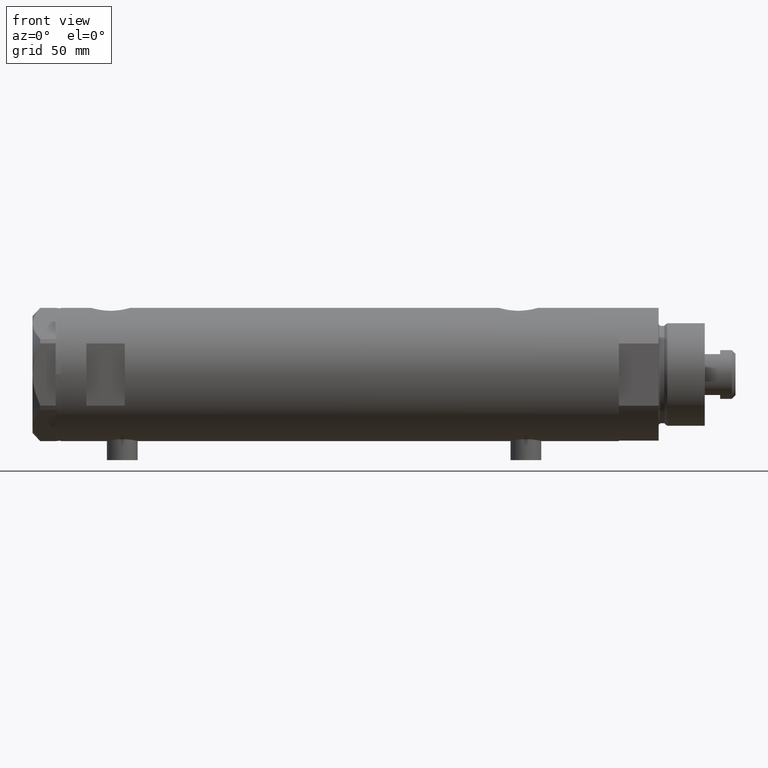
[diagram: clean part render]
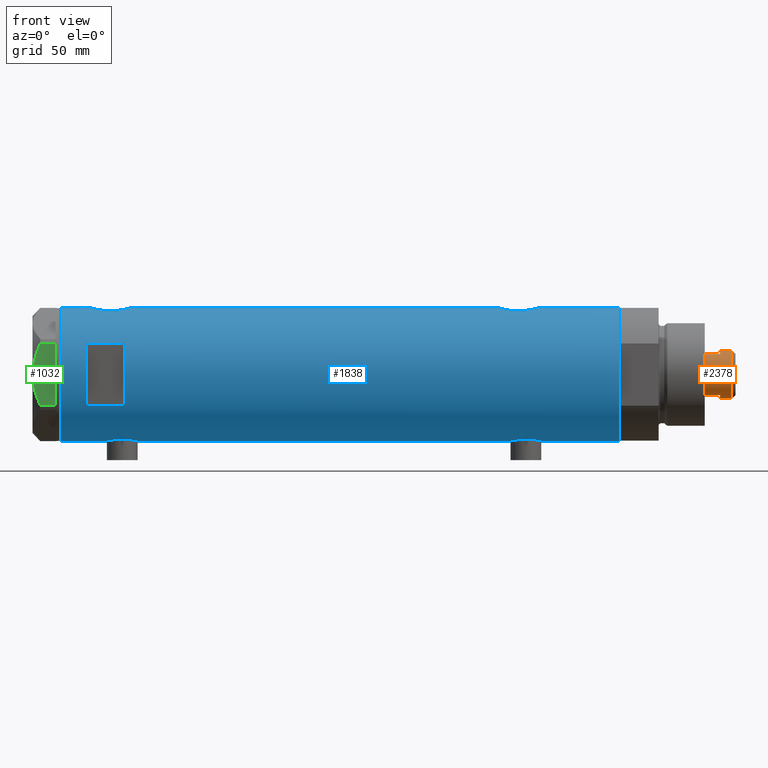
[diagram: same view with three faces highlighted in distinct colors, each labeled with its STEP entity id]
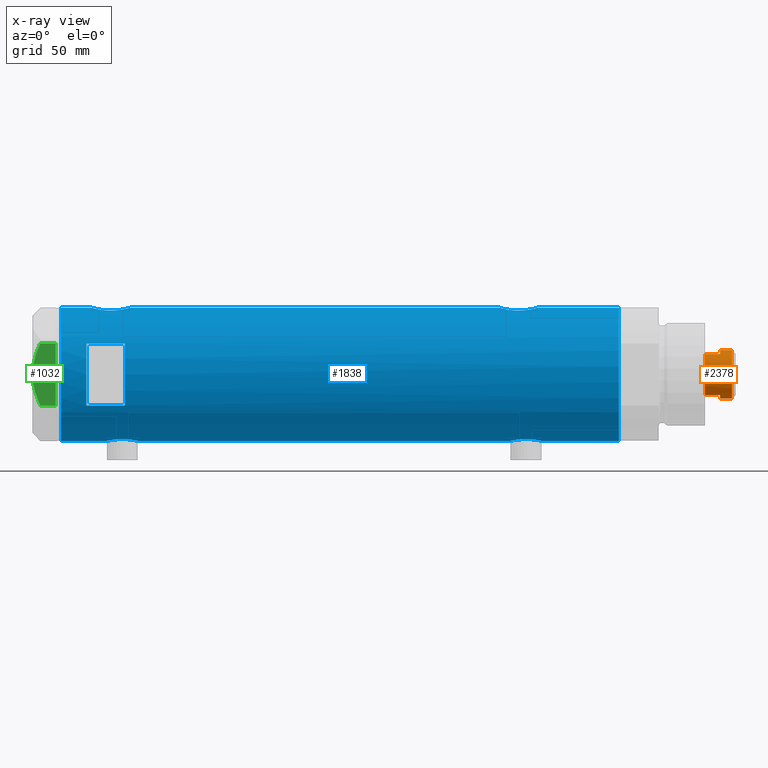
[diagram: x-ray of the same camera — body ghosted, the three highlighted faces saturated]
A machine part, front view with three faces highlighted in distinct colors.
The next image is the same camera in x-ray (body ghosted, the three faces saturated) — at least one of them is partly hidden behind the body in this view.
Their STEP definitions:

[orange] entity #2378 — the highlighted cylindrical surface (edge-blend (fillet) strip) has radius 9.5 mm, axis along (-1, -0, 0).
#20 = LINE ( 'NONE', #3564, #4116 ) ;
#209 = ORIENTED_EDGE ( 'NONE', *, *, #828, .T. ) ;
#306 = ORIENTED_EDGE ( 'NONE', *, *, #3644, .T. ) ;
#376 = CARTESIAN_POINT ( 'NONE',  ( 0.000000000000000000, 0.000000000000000000, 233.6000000000000227 ) ) ;
#552 = EDGE_CURVE ( 'NONE', #2741, #1114, #2913, .T. ) ;
#790 = DIRECTION ( 'NONE',  ( -1.000000000000000000, 0.000000000000000000, 0.000000000000000000 ) ) ;
#807 = ORIENTED_EDGE ( 'NONE', *, *, #4837, .F. ) ;
#828 = EDGE_CURVE ( 'NONE', #979, #5052, #4329, .T. ) ;
#886 = CARTESIAN_POINT ( 'NONE',  ( -9.500000000000000000, 0.000000000000000000, 233.6000000000000227 ) ) ;
#979 = VERTEX_POINT ( 'NONE', #1139 ) ;
#1017 = AXIS2_PLACEMENT_3D ( 'NONE', #4814, #1938, #4790 ) ;
#1114 = VERTEX_POINT ( 'NONE', #4857 ) ;
#1137 = LINE ( 'NONE', #2679, #4444 ) ;
#1139 = CARTESIAN_POINT ( 'NONE',  ( -9.500000000000001776, 0.000000000000000000, 238.1999999999999886 ) ) ;
#1163 = CARTESIAN_POINT ( 'NONE',  ( 0.000000000000000000, 0.000000000000000000, 227.6000000000000227 ) ) ;
#1192 = CARTESIAN_POINT ( 'NONE',  ( -7.982950582334825462, -5.150000000000003020, 233.6000000000000227 ) ) ;
#1272 = VERTEX_POINT ( 'NONE', #4668 ) ;
#1339 = AXIS2_PLACEMENT_3D ( 'NONE', #3613, #2428, #790 ) ;
#1584 = DIRECTION ( 'NONE',  ( 0.000000000000000000, 0.000000000000000000, 1.000000000000000000 ) ) ;
#1629 = FACE_OUTER_BOUND ( 'NONE', #2999, .T. ) ;
#1769 = CARTESIAN_POINT ( 'NONE',  ( 9.500000000000001776, 1.163414459189985682E-15, 233.6000000000000227 ) ) ;
#1921 = DIRECTION ( 'NONE',  ( -0.000000000000000000, -0.000000000000000000, -1.000000000000000000 ) ) ;
#1938 = DIRECTION ( 'NONE',  ( 0.000000000000000000, 0.000000000000000000, -1.000000000000000000 ) ) ;
#1940 = EDGE_CURVE ( 'NONE', #3466, #1114, #3273, .T. ) ;
#2015 = AXIS2_PLACEMENT_3D ( 'NONE', #3272, #4878, #2880 ) ;
#2024 = AXIS2_PLACEMENT_3D ( 'NONE', #376, #1584, #3173 ) ;
#2122 = CARTESIAN_POINT ( 'NONE',  ( -7.982950582334825462, -5.150000000000019007, 227.6000000000000227 ) ) ;
#2132 = CARTESIAN_POINT ( 'NONE',  ( 7.982950582334832568, -5.149999999999997691, 233.6000000000000227 ) ) ;
#2278 = CIRCLE ( 'NONE', #2015, 9.500000000000000000 ) ;
#2378 = ADVANCED_FACE ( 'NONE', ( #1629 ), #2457, .T. ) ;
#2428 = DIRECTION ( 'NONE',  ( -0.000000000000000000, -0.000000000000000000, -1.000000000000000000 ) ) ;
#2457 = CYLINDRICAL_SURFACE ( 'NONE', #1339, 9.500000000000001776 ) ;
#2476 = EDGE_CURVE ( 'NONE', #5052, #2981, #2278, .T. ) ;
#2525 = CIRCLE ( 'NONE', #1017, 9.500000000000001776 ) ;
#2679 = CARTESIAN_POINT ( 'NONE',  ( -7.982950582334829015, -5.150000000000001243, 233.6000000000000227 ) ) ;
#2725 = VERTEX_POINT ( 'NONE', #2122 ) ;
#2741 = VERTEX_POINT ( 'NONE', #3294 ) ;
#2880 = DIRECTION ( 'NONE',  ( 1.000000000000000000, 0.000000000000000000, 0.000000000000000000 ) ) ;
#2913 = LINE ( 'NONE', #1769, #3259 ) ;
#2944 = EDGE_CURVE ( 'NONE', #2725, #1272, #4532, .T. ) ;
#2981 = VERTEX_POINT ( 'NONE', #1192 ) ;
#2999 = EDGE_LOOP ( 'NONE', ( #4180, #5167, #209, #3744, #306, #4023, #807, #4245 ) ) ;
#3092 = CARTESIAN_POINT ( 'NONE',  ( -9.500000000000001776, 0.000000000000000000, 233.6000000000000227 ) ) ;
#3173 = DIRECTION ( 'NONE',  ( 1.000000000000000000, 0.000000000000000000, 0.000000000000000000 ) ) ;
#3234 = DIRECTION ( 'NONE',  ( 0.000000000000000000, 0.000000000000000000, 1.000000000000000000 ) ) ;
#3259 = VECTOR ( 'NONE', #3726, 1000.000000000000000 ) ;
#3272 = CARTESIAN_POINT ( 'NONE',  ( 0.000000000000000000, 0.000000000000000000, 233.6000000000000227 ) ) ;
#3273 = CIRCLE ( 'NONE', #2024, 9.500000000000000000 ) ;
#3294 = CARTESIAN_POINT ( 'NONE',  ( 9.500000000000001776, 1.163414459189985682E-15, 238.1999999999999886 ) ) ;
#3466 = VERTEX_POINT ( 'NONE', #2132 ) ;
#3520 = AXIS2_PLACEMENT_3D ( 'NONE', #1163, #3234, #4045 ) ;
#3564 = CARTESIAN_POINT ( 'NONE',  ( 7.982950582334832568, -5.149999999999997691, 233.6000000000000227 ) ) ;
#3613 = CARTESIAN_POINT ( 'NONE',  ( 0.000000000000000000, 0.000000000000000000, 233.6000000000000227 ) ) ;
#3644 = EDGE_CURVE ( 'NONE', #2981, #2725, #1137, .T. ) ;
#3726 = DIRECTION ( 'NONE',  ( -0.000000000000000000, -0.000000000000000000, -1.000000000000000000 ) ) ;
#3744 = ORIENTED_EDGE ( 'NONE', *, *, #2476, .T. ) ;
#4023 = ORIENTED_EDGE ( 'NONE', *, *, #2944, .T. ) ;
#4045 = DIRECTION ( 'NONE',  ( 1.000000000000000000, 0.000000000000000000, 0.000000000000000000 ) ) ;
#4116 = VECTOR ( 'NONE', #4348, 1000.000000000000000 ) ;
#4180 = ORIENTED_EDGE ( 'NONE', *, *, #552, .F. ) ;
#4245 = ORIENTED_EDGE ( 'NONE', *, *, #1940, .T. ) ;
#4329 = LINE ( 'NONE', #3092, #4352 ) ;
#4348 = DIRECTION ( 'NONE',  ( -0.000000000000000000, -0.000000000000000000, -1.000000000000000000 ) ) ;
#4352 = VECTOR ( 'NONE', #1921, 1000.000000000000000 ) ;
#4444 = VECTOR ( 'NONE', #4730, 1000.000000000000000 ) ;
#4467 = EDGE_CURVE ( 'NONE', #2741, #979, #2525, .T. ) ;
#4532 = CIRCLE ( 'NONE', #3520, 9.500000000000001776 ) ;
#4668 = CARTESIAN_POINT ( 'NONE',  ( 7.982950582334834344, -5.150000000000009237, 227.6000000000000227 ) ) ;
#4730 = DIRECTION ( 'NONE',  ( -0.000000000000000000, -0.000000000000000000, -1.000000000000000000 ) ) ;
#4790 = DIRECTION ( 'NONE',  ( 1.000000000000000000, 0.000000000000000000, 0.000000000000000000 ) ) ;
#4814 = CARTESIAN_POINT ( 'NONE',  ( 0.000000000000000000, 0.000000000000000000, 238.1999999999999886 ) ) ;
#4837 = EDGE_CURVE ( 'NONE', #3466, #1272, #20, .T. ) ;
#4857 = CARTESIAN_POINT ( 'NONE',  ( 9.500000000000000000, 1.163414459189985485E-15, 233.6000000000000227 ) ) ;
#4878 = DIRECTION ( 'NONE',  ( 0.000000000000000000, 0.000000000000000000, 1.000000000000000000 ) ) ;
#5052 = VERTEX_POINT ( 'NONE', #886 ) ;
#5167 = ORIENTED_EDGE ( 'NONE', *, *, #4467, .T. ) ;

[blue] entity #1838 — the highlighted cylindrical surface (partial cylindrical patch) has radius 26 mm, axis along (-1, -0, 0).
#23 = CARTESIAN_POINT ( 'NONE',  ( -26.00000000000000355, 3.184081677783118585E-15, -108.9500000000000028 ) ) ;
#45 = CARTESIAN_POINT ( 'NONE',  ( 26.00000000000000355, 0.000000000000000000, -108.9500000000000028 ) ) ;
#136 = CARTESIAN_POINT ( 'NONE',  ( 12.12435565298214080, -23.00000000000000355, 98.95000000000001705 ) ) ;
#156 = CYLINDRICAL_SURFACE ( 'NONE', #2351, 26.00000000000000355 ) ;
#234 = CARTESIAN_POINT ( 'NONE',  ( -25.42977453177915592, -5.420307583276858132, 81.81187728206637644 ) ) ;
#237 = CIRCLE ( 'NONE', #3174, 26.00000000000000355 ) ;
#269 = CARTESIAN_POINT ( 'NONE',  ( -25.24022290516698774, -6.239518219915429320, 84.53402784061569264 ) ) ;
#282 = EDGE_CURVE ( 'NONE', #949, #2224, #2692, .T. ) ;
#291 = ORIENTED_EDGE ( 'NONE', *, *, #282, .F. ) ;
#293 = CARTESIAN_POINT ( 'NONE',  ( -25.67063510297210271, -4.128418051804843003, -67.95317424728736455 ) ) ;
#312 = CARTESIAN_POINT ( 'NONE',  ( -26.00000000000000355, 1.227111019500118713E-15, 91.20000000000000284 ) ) ;
#313 = CARTESIAN_POINT ( 'NONE',  ( 25.52449676677458967, -4.953491517965892932, 83.81325508665925383 ) ) ;
#319 = CARTESIAN_POINT ( 'NONE',  ( -25.99999999999999645, -0.4086738135806038397, -78.90000000000000568 ) ) ;
#321 = CARTESIAN_POINT ( 'NONE',  ( -25.28632996747172967, -6.050474653715409268, 86.56911870841543077 ) ) ;
#322 = CARTESIAN_POINT ( 'NONE',  ( 25.00829008792692321, -7.115081037226479665, -67.32698996259182422 ) ) ;
#344 = CARTESIAN_POINT ( 'NONE',  ( 25.78993643992928142, -3.329561377902412467, 96.18821560278738048 ) ) ;
#351 = CARTESIAN_POINT ( 'NONE',  ( -25.23763877699556701, -6.249927116972441965, -72.85835527665466316 ) ) ;
#354 = CARTESIAN_POINT ( 'NONE',  ( -25.95206678899177888, -1.628763264760248353, 90.99800813330213600 ) ) ;
#356 = CARTESIAN_POINT ( 'NONE',  ( 25.11243836838845311, -6.738202653785838159, -73.07956649155158857 ) ) ;
#372 = CARTESIAN_POINT ( 'NONE',  ( 25.59665538672497576, -4.580438224580683837, 95.40889127712392792 ) ) ;
#378 = CARTESIAN_POINT ( 'NONE',  ( 26.00000000000000355, 0.000000000000000000, 108.9500000000000028 ) ) ;
#379 = CARTESIAN_POINT ( 'NONE',  ( 25.27534302296961854, -6.097250460344751488, -65.37590386902925843 ) ) ;
#396 = EDGE_CURVE ( 'NONE', #1337, #1617, #2409, .T. ) ;
#400 = CARTESIAN_POINT ( 'NONE',  ( 25.93085545515513246, -1.956676574435514349, -62.49272963169730133 ) ) ;
#429 = CARTESIAN_POINT ( 'NONE',  ( -26.00000000000000355, 3.184077527313362130E-15, 78.69999999999998863 ) ) ;
#432 = CARTESIAN_POINT ( 'NONE',  ( 26.00000000000000355, 1.142179864233347086E-15, 81.94999999999998863 ) ) ;
#500 = CARTESIAN_POINT ( 'NONE',  ( 25.93098857934041490, -1.953835360821270628, -77.00773664702565213 ) ) ;
#517 = B_SPLINE_CURVE_WITH_KNOTS ( 'NONE', 3,
 ( #4665, #5093, #5172, #3959, #3124, #344, #5152, #372, #3488, #3168, #3567, #1130, #2728, #2705, #4303, #4328, #1070, #3149, #765, #737, #1560, #4745, #685, #2285, #3462, #1047, #2644, #712, #1152, #1475, #1500, #1976, #313, #4242, #2310, #2754, #652, #4351, #2253, #3850, #3065, #3091 ),
 .UNSPECIFIED., .F., .F.,
 ( 4, 2, 2, 2, 2, 2, 2, 2, 2, 2, 2, 2, 2, 2, 2, 2, 2, 2, 2, 2, 4 ),
 ( 0.02357432247332889169, 0.02504731828495727897, 0.02652031409658566277, 0.02799330990821405005, 0.02946630571984243385, 0.03020280362565662749, 0.03093930153147082113, 0.03241229734309917371, 0.03388529315472752629, 0.03462179106054170258, 0.03535828896635587887, 0.03683128477798423145, 0.03756778268379840774, 0.03830428058961257709, 0.03977727640124092967, 0.04125027221286928225, 0.04198677011868344466, 0.04272326802449760708, 0.04419626383612591108, 0.04566925964775421509, 0.04714225545938251910 ),
 .UNSPECIFIED. ) ;
#518 = EDGE_CURVE ( 'NONE', #1617, #3008, #237, .T. ) ;
#520 = VERTEX_POINT ( 'NONE', #378 ) ;
#553 = EDGE_LOOP ( 'NONE', ( #2398, #906, #3321, #876 ) ) ;
#561 = FACE_BOUND ( 'NONE', #553, .T. ) ;
#584 = EDGE_CURVE ( 'NONE', #2673, #1337, #4942, .T. ) ;
#652 = CARTESIAN_POINT ( 'NONE',  ( 25.78902964777116225, -3.336582972512959877, 82.71524159542262566 ) ) ;
#655 = VERTEX_POINT ( 'NONE', #2591 ) ;
#685 = CARTESIAN_POINT ( 'NONE',  ( 24.90947356773249055, -7.451722770779351634, 88.46809158171845411 ) ) ;
#691 = CARTESIAN_POINT ( 'NONE',  ( -25.25769689814629970, -6.168504065326070318, -73.67646635296743796 ) ) ;
#694 = CARTESIAN_POINT ( 'NONE',  ( -25.67063510297210271, -4.128418051804843003, 89.64682575271265819 ) ) ;
#712 = CARTESIAN_POINT ( 'NONE',  ( 25.11243836838846377, -6.738202653785839935, 86.12043350844844269 ) ) ;
#720 = CARTESIAN_POINT ( 'NONE',  ( -25.85385060263650914, -2.778671585188189574, 90.56314451304237423 ) ) ;
#723 = CARTESIAN_POINT ( 'NONE',  ( 26.00000000000000000, -0.4910237949823181847, -62.24999999999997868 ) ) ;
#737 = CARTESIAN_POINT ( 'NONE',  ( 24.89854802586674865, -7.487520416261751244, 89.94815683577905929 ) ) ;
#742 = CARTESIAN_POINT ( 'NONE',  ( -25.92425332714051933, -2.018894156999447631, -78.57896120675330565 ) ) ;
#745 = CARTESIAN_POINT ( 'NONE',  ( -25.92364458890660472, -2.026637113504541343, 90.87630990691475574 ) ) ;
#746 = CARTESIAN_POINT ( 'NONE',  ( 24.95200646071794637, -7.307522494171291960, -71.45607564187282890 ) ) ;
#760 = B_SPLINE_CURVE_WITH_KNOTS ( 'NONE', 3,
 ( #3232, #723, #1589, #400, #820, #2319, #3575, #2410, #3911, #3179, #1190, #4364, #379, #3987, #4337, #322, #3527, #2793, #4782, #5135, #3596, #2341, #1544, #746, #3940, #1985, #2006, #356, #1962, #3555, #5181, #1568, #3158, #1161, #2764, #1344, #2114, #4914, #500, #4468, #1236, #2160 ),
 .UNSPECIFIED., .F., .F.,
 ( 4, 2, 2, 2, 2, 2, 2, 2, 2, 2, 2, 2, 2, 2, 2, 2, 2, 2, 2, 2, 4 ),
 ( 0.02357432247332888822, 0.02504731828495722692, 0.02652031409658556910, 0.02799330990821390780, 0.02946630571984224650, 0.03020280362565641585, 0.03093930153147058520, 0.03241229734309895860, 0.03388529315472733200, 0.03462179106054152217, 0.03535828896635570540, 0.03683128477798407879, 0.03756778268379826896, 0.03830428058961245219, 0.03977727640124082559, 0.04125027221286919898, 0.04198677011868337527, 0.04272326802449755156, 0.04419626383612587639, 0.04566925964775419428, 0.04714225545938251910 ),
 .UNSPECIFIED. ) ;
#765 = CARTESIAN_POINT ( 'NONE',  ( 24.91324908721445652, -7.438459228814672919, 90.44017499374189129 ) ) ;
#772 = CARTESIAN_POINT ( 'NONE',  ( -25.81232680456766815, -3.137210741985112072, -67.22886342778420499 ) ) ;
#775 = CARTESIAN_POINT ( 'NONE',  ( 0.000000000000000000, 0.000000000000000000, 83.95000000000011653 ) ) ;
#795 = CARTESIAN_POINT ( 'NONE',  ( -25.95218276861526974, -1.627663810194430960, -78.69850980387604977 ) ) ;
#820 = CARTESIAN_POINT ( 'NONE',  ( 25.89059789403177092, -2.425642437452270705, -62.63622552757698259 ) ) ;
#833 = DIRECTION ( 'NONE',  ( 1.000000000000000000, 0.000000000000000000, 0.000000000000000000 ) ) ;
#846 = CARTESIAN_POINT ( 'NONE',  ( -12.12435565298214080, -23.00000000000000355, -108.9500000000000028 ) ) ;
#857 = ORIENTED_EDGE ( 'NONE', *, *, #4870, .T. ) ;
#876 = ORIENTED_EDGE ( 'NONE', *, *, #3901, .F. ) ;
#906 = ORIENTED_EDGE ( 'NONE', *, *, #396, .F. ) ;
#949 = VERTEX_POINT ( 'NONE', #429 ) ;
#962 = CARTESIAN_POINT ( 'NONE',  ( -25.92425332714051933, -2.018894156999441858, 79.02103879324673130 ) ) ;
#983 = CARTESIAN_POINT ( 'NONE',  ( -25.81160981652327635, -3.129523010631801494, 79.53607026277927616 ) ) ;
#988 = EDGE_CURVE ( 'NONE', #4331, #2306, #760, .T. ) ;
#1002 = FACE_OUTER_BOUND ( 'NONE', #2078, .T. ) ;
#1047 = CARTESIAN_POINT ( 'NONE',  ( 25.01107424167501492, -7.102941973849622670, 87.02937151337422961 ) ) ;
#1052 = EDGE_CURVE ( 'NONE', #2383, #520, #2260, .T. ) ;
#1055 = CARTESIAN_POINT ( 'NONE',  ( -25.99009752186832856, -0.8230863847107351416, 91.15917071406683192 ) ) ;
#1065 = DIRECTION ( 'NONE',  ( 0.000000000000000000, 0.000000000000000000, 1.000000000000000000 ) ) ;
#1070 = CARTESIAN_POINT ( 'NONE',  ( 24.96672817551787915, -7.257586026187405004, 91.40384199721297875 ) ) ;
#1076 = CARTESIAN_POINT ( 'NONE',  ( -25.64593536028936072, -4.278686337618961666, -68.08968397039120646 ) ) ;
#1077 = CARTESIAN_POINT ( 'NONE',  ( -26.00000000000000355, 3.184077527325983904E-15, -78.90000000000000568 ) ) ;
#1109 = CARTESIAN_POINT ( 'NONE',  ( -25.28680988956730147, -6.048472998962280300, -74.27627694188244334 ) ) ;
#1112 = CARTESIAN_POINT ( 'NONE',  ( -25.59645788645699227, -4.565358797148518555, 89.22330529203479443 ) ) ;
#1130 = CARTESIAN_POINT ( 'NONE',  ( 25.31004928890825667, -5.952041021437470825, 94.01980599883506784 ) ) ;
#1135 = EDGE_CURVE ( 'NONE', #3720, #3628, #3313, .T. ) ;
#1136 = CARTESIAN_POINT ( 'NONE',  ( -25.87202607293667000, -2.583404329177999337, -78.34473666854512430 ) ) ;
#1138 = CARTESIAN_POINT ( 'NONE',  ( -25.31538696791482224, -5.929326713517952818, 86.96796632208101130 ) ) ;
#1152 = CARTESIAN_POINT ( 'NONE',  ( 25.17393786935995692, -6.507882790539431639, 85.68962666655968974 ) ) ;
#1157 = CARTESIAN_POINT ( 'NONE',  ( -25.31538696791482224, -5.929326713517954595, -70.63203367791901144 ) ) ;
#1161 = CARTESIAN_POINT ( 'NONE',  ( 25.59500516383204882, -4.575229401795805728, -75.69787755065419788 ) ) ;
#1190 = CARTESIAN_POINT ( 'NONE',  ( 25.38109653984943748, -5.641393955635675361, -64.80180907551250868 ) ) ;
#1226 = DIRECTION ( 'NONE',  ( 0.000000000000000000, 0.000000000000000000, 1.000000000000000000 ) ) ;
#1236 = CARTESIAN_POINT ( 'NONE',  ( 26.00000000000001066, -0.4982617809740571002, -77.25000000000004263 ) ) ;
#1248 = DIRECTION ( 'NONE',  ( 0.000000000000000000, 0.000000000000000000, 1.000000000000000000 ) ) ;
#1264 = CARTESIAN_POINT ( 'NONE',  ( 0.000000000000000000, 0.000000000000000000, 108.9500000000000028 ) ) ;
#1280 = LINE ( 'NONE', #23, #4869 ) ;
#1288 = LINE ( 'NONE', #3283, #4280 ) ;
#1315 = DIRECTION ( 'NONE',  ( 0.000000000000000000, 0.000000000000000000, 1.000000000000000000 ) ) ;
#1337 = VERTEX_POINT ( 'NONE', #2312 ) ;
#1344 = CARTESIAN_POINT ( 'NONE',  ( 25.72912156655466376, -3.765948295762498788, -76.25442975399225531 ) ) ;
#1352 = CARTESIAN_POINT ( 'NONE',  ( -25.99036913299955742, -0.8159609457881448202, 78.73968856968109264 ) ) ;
#1394 = CARTESIAN_POINT ( 'NONE',  ( -26.00000000000000355, 1.227111019500118713E-15, -66.40000000000000568 ) ) ;
#1459 = CARTESIAN_POINT ( 'NONE',  ( -25.25025691038242215, -6.198787452305312584, 84.12558834604206481 ) ) ;
#1475 = CARTESIAN_POINT ( 'NONE',  ( 25.30930190055639528, -5.959775463244130655, 84.87025956521969761 ) ) ;
#1482 = CARTESIAN_POINT ( 'NONE',  ( -25.24022290516699130, -6.239518219915429320, -73.06597215938428747 ) ) ;
#1500 = CARTESIAN_POINT ( 'NONE',  ( 25.38125492692911678, -5.649348210287295835, 84.49305665653602659 ) ) ;
#1506 = CARTESIAN_POINT ( 'NONE',  ( -25.31551596256916525, -5.928819821281961389, -74.67011491904084153 ) ) ;
#1508 = CARTESIAN_POINT ( 'NONE',  ( -25.24765475072630139, -6.209883762780004091, 85.76678184355100143 ) ) ;
#1519 = VECTOR ( 'NONE', #2866, 1000.000000000000000 ) ;
#1541 = VECTOR ( 'NONE', #1065, 1000.000000000000000 ) ;
#1544 = CARTESIAN_POINT ( 'NONE',  ( 24.90947356773249055, -7.451722770779349858, -70.73190841828153452 ) ) ;
#1560 = CARTESIAN_POINT ( 'NONE',  ( 24.89478872726945369, -7.499966281647711064, 89.69821850634781413 ) ) ;
#1565 = CARTESIAN_POINT ( 'NONE',  ( -25.23758491649665459, -6.250144606721702800, -72.23988300428190712 ) ) ;
#1568 = CARTESIAN_POINT ( 'NONE',  ( 25.48871066912673911, -5.133852125086513674, -75.22290306743980182 ) ) ;
#1589 = CARTESIAN_POINT ( 'NONE',  ( 25.98599366666249111, -0.9828433289544102891, -62.29811598276526752 ) ) ;
#1602 = CARTESIAN_POINT ( 'NONE',  ( 26.00000000000000355, 0.000000000000000000, -108.9500000000000028 ) ) ;
#1617 = VERTEX_POINT ( 'NONE', #3617 ) ;
#1778 = CARTESIAN_POINT ( 'NONE',  ( -26.00000000000001066, -0.4086738135806035066, 78.70000000000000284 ) ) ;
#1810 = ORIENTED_EDGE ( 'NONE', *, *, #1052, .F. ) ;
#1825 = DIRECTION ( 'NONE',  ( 1.000000000000000000, 0.000000000000000000, 0.000000000000000000 ) ) ;
#1838 = ADVANCED_FACE ( 'NONE', ( #1002, #561 ), #156, .T. ) ;
#1844 = ORIENTED_EDGE ( 'NONE', *, *, #988, .F. ) ;
#1849 = CARTESIAN_POINT ( 'NONE',  ( -25.23763877699557412, -6.249927116972443741, 84.74164472334534537 ) ) ;
#1900 = CARTESIAN_POINT ( 'NONE',  ( -25.74330903162725903, -3.648508829439208068, -67.57132285284200179 ) ) ;
#1925 = EDGE_CURVE ( 'NONE', #3628, #2140, #4426, .T. ) ;
#1926 = CARTESIAN_POINT ( 'NONE',  ( -25.71926338401909362, -3.813768894920908537, -67.69427860166180722 ) ) ;
#1933 = VECTOR ( 'NONE', #2441, 1000.000000000000000 ) ;
#1962 = CARTESIAN_POINT ( 'NONE',  ( 25.17393786935996403, -6.507882790539431639, -73.51037333344034153 ) ) ;
#1976 = CARTESIAN_POINT ( 'NONE',  ( 25.48871066912672845, -5.133852125086512785, 83.97709693256024366 ) ) ;
#1982 = CARTESIAN_POINT ( 'NONE',  ( -25.92364458890659407, -2.026637113504532017, -66.72369009308523857 ) ) ;
#1985 = CARTESIAN_POINT ( 'NONE',  ( 25.01107424167500071, -7.102941973849621782, -72.17062848662580166 ) ) ;
#2006 = CARTESIAN_POINT ( 'NONE',  ( 25.03461301890608937, -7.019803056070514913, -72.40183183106897502 ) ) ;
#2041 = AXIS2_PLACEMENT_3D ( 'NONE', #4818, #1226, #833 ) ;
#2078 = EDGE_LOOP ( 'NONE', ( #4735, #857, #4013, #1844, #2832, #3505, #4772, #1810, #2513, #291, #2750, #5118 ) ) ;
#2110 = DIRECTION ( 'NONE',  ( 0.000000000000000000, 0.000000000000000000, 1.000000000000000000 ) ) ;
#2114 = CARTESIAN_POINT ( 'NONE',  ( 25.78902964777117290, -3.336582972512958101, -76.48475840457741981 ) ) ;
#2140 = VERTEX_POINT ( 'NONE', #1394 ) ;
#2160 = CARTESIAN_POINT ( 'NONE',  ( 26.00000000000000355, 3.155021778966484351E-16, -77.25000000000001421 ) ) ;
#2165 = CARTESIAN_POINT ( 'NONE',  ( -26.00000000000000355, 3.184077527313362130E-15, 78.69999999999998863 ) ) ;
#2208 = LINE ( 'NONE', #3013, #4026 ) ;
#2224 = VERTEX_POINT ( 'NONE', #312 ) ;
#2253 = CARTESIAN_POINT ( 'NONE',  ( 25.93098857934040780, -1.953835360821273515, 82.19226335297440755 ) ) ;
#2260 = CIRCLE ( 'NONE', #3424, 26.00000000000000355 ) ;
#2263 = CARTESIAN_POINT ( 'NONE',  ( -26.00000000000000355, 1.227111019500118713E-15, 91.20000000000000284 ) ) ;
#2285 = CARTESIAN_POINT ( 'NONE',  ( 24.95200646071793926, -7.307522494171290184, 87.74392435812720237 ) ) ;
#2293 = CARTESIAN_POINT ( 'NONE',  ( -25.57228991600091916, -4.705691472451703383, -76.78339690124650474 ) ) ;
#2295 = CARTESIAN_POINT ( 'NONE',  ( -25.57228991600092272, -4.705691472451695390, 80.81660309875346115 ) ) ;
#2306 = VERTEX_POINT ( 'NONE', #2704 ) ;
#2310 = CARTESIAN_POINT ( 'NONE',  ( 25.62983961939739785, -4.376509667782460866, 83.35441500957037420 ) ) ;
#2312 = CARTESIAN_POINT ( 'NONE',  ( -12.12435565298214080, -23.00000000000000355, 98.95000000000001705 ) ) ;
#2315 = CARTESIAN_POINT ( 'NONE',  ( -26.00000000000001066, -0.4144764235405758446, -66.40000000000004832 ) ) ;
#2319 = CARTESIAN_POINT ( 'NONE',  ( 25.78993643992928497, -3.329561377902416464, -63.01178439721262237 ) ) ;
#2337 = CARTESIAN_POINT ( 'NONE',  ( -25.38744165544136422, -5.612847683295913548, -75.42987583238478067 ) ) ;
#2338 = AXIS2_PLACEMENT_3D ( 'NONE', #4992, #3802, #3361 ) ;
#2341 = CARTESIAN_POINT ( 'NONE',  ( 24.89475831528844552, -7.500067228253141316, -70.24337428253535620 ) ) ;
#2351 = AXIS2_PLACEMENT_3D ( 'NONE', #3441, #4200, #1825 ) ;
#2365 = CARTESIAN_POINT ( 'NONE',  ( -25.85385060263651269, -2.778671585188182025, -67.03685548695763430 ) ) ;
#2368 = DIRECTION ( 'NONE',  ( -0.000000000000000000, -4.625929269271486900E-15, 1.000000000000000000 ) ) ;
#2380 = LINE ( 'NONE', #1602, #4525 ) ;
#2383 = VERTEX_POINT ( 'NONE', #2804 ) ;
#2385 = CARTESIAN_POINT ( 'NONE',  ( -25.72076778631230098, -3.815670258243491819, -77.61687810531877574 ) ) ;
#2398 = ORIENTED_EDGE ( 'NONE', *, *, #518, .F. ) ;
#2409 = LINE ( 'NONE', #846, #1933 ) ;
#2410 = CARTESIAN_POINT ( 'NONE',  ( 25.59665538672497220, -4.580438224580683837, -63.79110872287611755 ) ) ;
#2432 = EDGE_CURVE ( 'NONE', #4331, #4568, #2380, .T. ) ;
#2441 = DIRECTION ( 'NONE',  ( -0.000000000000000000, -0.000000000000000000, -1.000000000000000000 ) ) ;
#2458 = EDGE_CURVE ( 'NONE', #655, #520, #3639, .T. ) ;
#2513 = ORIENTED_EDGE ( 'NONE', *, *, #4129, .F. ) ;
#2546 = CARTESIAN_POINT ( 'NONE',  ( -26.00000000000000355, 3.184081677783118585E-15, -108.9500000000000028 ) ) ;
#2552 = CARTESIAN_POINT ( 'NONE',  ( -25.87202607293667000, -2.583404329177993120, 79.25526333145485580 ) ) ;
#2591 = CARTESIAN_POINT ( 'NONE',  ( 26.00000000000000355, -3.975030973907779525E-20, 96.95000000000000284 ) ) ;
#2611 = CARTESIAN_POINT ( 'NONE',  ( 26.00000000000000355, 0.000000000000000000, -108.9500000000000028 ) ) ;
#2644 = CARTESIAN_POINT ( 'NONE',  ( 25.03461301890608581, -7.019803056070516689, 86.79816816893104203 ) ) ;
#2652 = CARTESIAN_POINT ( 'NONE',  ( -25.74330903162726258, -3.648508829439215617, 90.02867714715799252 ) ) ;
#2673 = VERTEX_POINT ( 'NONE', #136 ) ;
#2675 = VECTOR ( 'NONE', #1248, 1000.000000000000000 ) ;
#2678 = CARTESIAN_POINT ( 'NONE',  ( -25.78943824387523520, -3.306687742228915372, -77.95754138783466658 ) ) ;
#2692 = B_SPLINE_CURVE_WITH_KNOTS ( 'NONE', 3,
 ( #2165, #1778, #1352, #4556, #962, #2552, #4153, #983, #2975, #2714, #3101, #2295, #5132, #234, #3831, #3157, #4753, #3860, #1459, #269, #1849, #3938, #1508, #321, #1138, #4228, #3495, #2737, #5160, #4703, #1112, #4281, #694, #4312, #2652, #4731, #720, #745, #354, #1055, #3523, #2263 ),
 .UNSPECIFIED., .F., .F.,
 ( 4, 2, 2, 2, 2, 2, 2, 2, 2, 2, 2, 2, 2, 2, 2, 2, 2, 2, 2, 2, 4 ),
 ( 0.01961238453869444676, 0.02083783025472769543, 0.02206327597076094410, 0.02267599882877755976, 0.02328872168679417543, 0.02451416740282743104, 0.02573961311886067971, 0.02696505883489393532, 0.02819050455092719093, 0.02880322740894379618, 0.02941595026696040144, 0.03064139598299361195, 0.03186684169902682245, 0.03309228741506003296, 0.03370501027307663822, 0.03431773313109324347, 0.03493045598910984872, 0.03554317884712646092, 0.03676862456315967143, 0.03799407027919288193, 0.03921951599522609938 ),
 .UNSPECIFIED. ) ;
#2702 = CARTESIAN_POINT ( 'NONE',  ( 26.00000000000000355, 0.000000000000000000, -108.9500000000000028 ) ) ;
#2704 = CARTESIAN_POINT ( 'NONE',  ( 26.00000000000000355, 3.155021778966484351E-16, -77.25000000000001421 ) ) ;
#2705 = CARTESIAN_POINT ( 'NONE',  ( 25.17510548814052029, -6.503212750695476885, 93.21761787815349010 ) ) ;
#2712 = CARTESIAN_POINT ( 'NONE',  ( -25.67167563980648382, -4.129238867693852733, -77.35934056431106853 ) ) ;
#2714 = CARTESIAN_POINT ( 'NONE',  ( -25.72076778631230098, -3.815670258243490043, 79.98312189468119016 ) ) ;
#2728 = CARTESIAN_POINT ( 'NONE',  ( 25.27534302296961499, -6.097250460344759482, 93.82409613097075862 ) ) ;
#2735 = CARTESIAN_POINT ( 'NONE',  ( -25.81160981652326925, -3.129523010631804159, -78.06392973722074657 ) ) ;
#2737 = CARTESIAN_POINT ( 'NONE',  ( -25.49846181844014481, -5.083495422175113632, 88.59177503382598218 ) ) ;
#2750 = ORIENTED_EDGE ( 'NONE', *, *, #3841, .F. ) ;
#2754 = CARTESIAN_POINT ( 'NONE',  ( 25.72912156655464955, -3.765948295762494791, 82.94557024600776174 ) ) ;
#2759 = CARTESIAN_POINT ( 'NONE',  ( -25.52274351135605102, -4.960534548086195095, -68.84248254659266308 ) ) ;
#2764 = CARTESIAN_POINT ( 'NONE',  ( 25.62983961939740141, -4.376509667782460866, -75.84558499042961444 ) ) ;
#2793 = CARTESIAN_POINT ( 'NONE',  ( 24.92415241886515176, -7.401968919186693086, -68.51676462555187186 ) ) ;
#2804 = CARTESIAN_POINT ( 'NONE',  ( -26.00000000000000355, 3.184081677783118585E-15, 108.9500000000000028 ) ) ;
#2825 = DIRECTION ( 'NONE',  ( 0.000000000000000000, 0.000000000000000000, 1.000000000000000000 ) ) ;
#2832 = ORIENTED_EDGE ( 'NONE', *, *, #2432, .T. ) ;
#2866 = DIRECTION ( 'NONE',  ( 0.000000000000000000, 0.000000000000000000, 1.000000000000000000 ) ) ;
#2893 = CARTESIAN_POINT ( 'NONE',  ( 12.12435565298214080, -23.00000000000000355, 83.95000000000001705 ) ) ;
#2975 = CARTESIAN_POINT ( 'NONE',  ( -25.78943824387523520, -3.306687742228914484, 79.64245861216535616 ) ) ;
#2982 = LINE ( 'NONE', #2611, #1541 ) ;
#3008 = VERTEX_POINT ( 'NONE', #2893 ) ;
#3013 = CARTESIAN_POINT ( 'NONE',  ( 12.12435565298214080, -23.00000000000000355, -108.9500000000000028 ) ) ;
#3065 = CARTESIAN_POINT ( 'NONE',  ( 26.00000000000000000, -0.4982617809740604309, 81.94999999999998863 ) ) ;
#3071 = CARTESIAN_POINT ( 'NONE',  ( -26.00000000000000355, 3.184077527325983904E-15, -78.90000000000000568 ) ) ;
#3082 = CARTESIAN_POINT ( 'NONE',  ( 26.00000000000000355, -3.975028449552882818E-20, -62.24999999999999289 ) ) ;
#3091 = CARTESIAN_POINT ( 'NONE',  ( 26.00000000000000355, 1.142179864233347086E-15, 81.94999999999998863 ) ) ;
#3101 = CARTESIAN_POINT ( 'NONE',  ( -25.67167563980648026, -4.129238867693847403, 80.24065943568896841 ) ) ;
#3124 = CARTESIAN_POINT ( 'NONE',  ( 25.89059789403177092, -2.425642437452268041, 96.56377447242302026 ) ) ;
#3149 = CARTESIAN_POINT ( 'NONE',  ( 24.92415241886515531, -7.401968919186696638, 90.68323537444815940 ) ) ;
#3157 = CARTESIAN_POINT ( 'NONE',  ( -25.31551596256916525, -5.928819821281963165, 82.92988508095918121 ) ) ;
#3158 = CARTESIAN_POINT ( 'NONE',  ( 25.52449676677458967, -4.953491517965894708, -75.38674491334074901 ) ) ;
#3168 = CARTESIAN_POINT ( 'NONE',  ( 25.41756773306325456, -5.475260495868988109, 94.58140873656952863 ) ) ;
#3174 = AXIS2_PLACEMENT_3D ( 'NONE', #775, #2368, #3966 ) ;
#3179 = CARTESIAN_POINT ( 'NONE',  ( 25.41756773306325812, -5.475260495868981003, -64.61859126343054527 ) ) ;
#3200 = CIRCLE ( 'NONE', #2041, 26.00000000000000355 ) ;
#3232 = CARTESIAN_POINT ( 'NONE',  ( 26.00000000000000355, -3.975028449552882818E-20, -62.24999999999999289 ) ) ;
#3283 = CARTESIAN_POINT ( 'NONE',  ( -26.00000000000000355, 3.184081677783118585E-15, -108.9500000000000028 ) ) ;
#3313 = LINE ( 'NONE', #2546, #1519 ) ;
#3321 = ORIENTED_EDGE ( 'NONE', *, *, #584, .F. ) ;
#3361 = DIRECTION ( 'NONE',  ( 1.000000000000000000, 0.000000000000000000, 0.000000000000000000 ) ) ;
#3424 = AXIS2_PLACEMENT_3D ( 'NONE', #1264, #1315, #4042 ) ;
#3441 = CARTESIAN_POINT ( 'NONE',  ( 0.000000000000000000, 0.000000000000000000, -108.9500000000000028 ) ) ;
#3462 = CARTESIAN_POINT ( 'NONE',  ( 24.96970063328116751, -7.247045583599700080, 87.50280785145197626 ) ) ;
#3488 = CARTESIAN_POINT ( 'NONE',  ( 25.52567976009756023, -4.956266804246118873, 95.10019927459099165 ) ) ;
#3493 = CARTESIAN_POINT ( 'NONE',  ( -25.95206678899177533, -1.628763264760248353, -66.60199186669787252 ) ) ;
#3495 = CARTESIAN_POINT ( 'NONE',  ( -25.42883439573799720, -5.424786127492320809, 88.08081457260908564 ) ) ;
#3505 = ORIENTED_EDGE ( 'NONE', *, *, #4069, .F. ) ;
#3521 = CARTESIAN_POINT ( 'NONE',  ( -25.85288666140181135, -2.767917424206679744, -78.25742209989670073 ) ) ;
#3523 = CARTESIAN_POINT ( 'NONE',  ( -25.99999999999999289, -0.4144764235405741237, 91.19999999999997442 ) ) ;
#3527 = CARTESIAN_POINT ( 'NONE',  ( 24.96672817551788626, -7.257586026187406780, -67.79615800278703830 ) ) ;
#3555 = CARTESIAN_POINT ( 'NONE',  ( 25.30930190055638818, -5.959775463244130655, -74.32974043478030524 ) ) ;
#3567 = CARTESIAN_POINT ( 'NONE',  ( 25.38109653984943392, -5.641393955635675361, 94.39819092448752258 ) ) ;
#3575 = CARTESIAN_POINT ( 'NONE',  ( 25.72873412774686130, -3.768477344985557753, -63.24712539855536875 ) ) ;
#3596 = CARTESIAN_POINT ( 'NONE',  ( 24.89478872726945013, -7.499966281647711064, -69.50178149365218871 ) ) ;
#3617 = CARTESIAN_POINT ( 'NONE',  ( -12.12435565298214080, -23.00000000000000355, 83.95000000000001705 ) ) ;
#3628 = VERTEX_POINT ( 'NONE', #1077 ) ;
#3639 = LINE ( 'NONE', #45, #2675 ) ;
#3720 = VERTEX_POINT ( 'NONE', #3909 ) ;
#3776 = DIRECTION ( 'NONE',  ( 0.000000000000000000, 0.000000000000000000, 1.000000000000000000 ) ) ;
#3802 = DIRECTION ( 'NONE',  ( -0.000000000000000000, 0.000000000000000000, -1.000000000000000000 ) ) ;
#3831 = CARTESIAN_POINT ( 'NONE',  ( -25.38744165544136777, -5.612847683295913548, 82.17012416761524207 ) ) ;
#3841 = EDGE_CURVE ( 'NONE', #2140, #949, #1288, .T. ) ;
#3850 = CARTESIAN_POINT ( 'NONE',  ( 25.98569226047904834, -0.9886551788957221865, 81.99917623399818467 ) ) ;
#3860 = CARTESIAN_POINT ( 'NONE',  ( -25.25769689814630325, -6.168504065326069430, 83.92353364703255636 ) ) ;
#3883 = CARTESIAN_POINT ( 'NONE',  ( -25.24765475072630139, -6.209883762780003202, -71.83321815644899289 ) ) ;
#3901 = EDGE_CURVE ( 'NONE', #3008, #2673, #2208, .T. ) ;
#3909 = CARTESIAN_POINT ( 'NONE',  ( -26.00000000000000355, 3.184081677783118585E-15, -108.9500000000000028 ) ) ;
#3911 = CARTESIAN_POINT ( 'NONE',  ( 25.52567976009756734, -4.956266804246113544, -64.09980072540906804 ) ) ;
#3938 = CARTESIAN_POINT ( 'NONE',  ( -25.23758491649666524, -6.250144606721703688, 85.36011699571807299 ) ) ;
#3940 = CARTESIAN_POINT ( 'NONE',  ( 24.96970063328117462, -7.247045583599700080, -71.69719214854804079 ) ) ;
#3959 = CARTESIAN_POINT ( 'NONE',  ( 25.93085545515512891, -1.956676574435516569, 96.70727036830268730 ) ) ;
#3964 = CARTESIAN_POINT ( 'NONE',  ( -26.00000000000000355, 1.227111019500118713E-15, -66.40000000000000568 ) ) ;
#3966 = DIRECTION ( 'NONE',  ( 1.776356839400250465E-15, 1.000000000000000000, 4.803849625781927035E-15 ) ) ;
#3984 = CARTESIAN_POINT ( 'NONE',  ( -25.52190669608695472, -4.968444991210427375, -76.46341092192484723 ) ) ;
#3987 = CARTESIAN_POINT ( 'NONE',  ( 25.17510548814052029, -6.503212750695466227, -65.98238212184648432 ) ) ;
#4013 = ORIENTED_EDGE ( 'NONE', *, *, #5153, .T. ) ;
#4026 = VECTOR ( 'NONE', #3776, 1000.000000000000000 ) ;
#4042 = DIRECTION ( 'NONE',  ( 1.000000000000000000, 0.000000000000000000, 0.000000000000000000 ) ) ;
#4069 = EDGE_CURVE ( 'NONE', #655, #4568, #517, .T. ) ;
#4080 = DIRECTION ( 'NONE',  ( 0.000000000000000000, 0.000000000000000000, 1.000000000000000000 ) ) ;
#4129 = EDGE_CURVE ( 'NONE', #2224, #2383, #1280, .T. ) ;
#4153 = CARTESIAN_POINT ( 'NONE',  ( -25.85288666140180069, -2.767917424206677524, 79.34257790010329359 ) ) ;
#4200 = DIRECTION ( 'NONE',  ( 0.000000000000000000, 0.000000000000000000, 1.000000000000000000 ) ) ;
#4228 = CARTESIAN_POINT ( 'NONE',  ( -25.38662204309616399, -5.616507264474307703, 87.72199377719323365 ) ) ;
#4242 = CARTESIAN_POINT ( 'NONE',  ( 25.59500516383205593, -4.575229401795806616, 83.50212244934579076 ) ) ;
#4280 = VECTOR ( 'NONE', #2110, 1000.000000000000000 ) ;
#4281 = CARTESIAN_POINT ( 'NONE',  ( -25.64593536028936427, -4.278686337618962554, 89.51031602960877365 ) ) ;
#4303 = CARTESIAN_POINT ( 'NONE',  ( 25.11342038069227200, -6.734617143597215971, 92.78770695790494472 ) ) ;
#4310 = CARTESIAN_POINT ( 'NONE',  ( -25.42883439573799720, -5.424786127492319920, -69.51918542739090867 ) ) ;
#4312 = CARTESIAN_POINT ( 'NONE',  ( -25.71926338401910073, -3.813768894920909425, 89.90572139833814447 ) ) ;
#4328 = CARTESIAN_POINT ( 'NONE',  ( 25.00829008792690900, -7.115081037226478777, 91.87301003740817862 ) ) ;
#4331 = VERTEX_POINT ( 'NONE', #3082 ) ;
#4337 = CARTESIAN_POINT ( 'NONE',  ( 25.11342038069226135, -6.734617143597214195, -66.41229304209502970 ) ) ;
#4351 = CARTESIAN_POINT ( 'NONE',  ( 25.88994451797511687, -2.432613607265607936, 82.33859031286796437 ) ) ;
#4359 = CARTESIAN_POINT ( 'NONE',  ( -25.59645788645699582, -4.565358797148518555, -68.37669470796522830 ) ) ;
#4364 = CARTESIAN_POINT ( 'NONE',  ( 25.31004928890825312, -5.952041021437469048, -65.18019400116494921 ) ) ;
#4426 = B_SPLINE_CURVE_WITH_KNOTS ( 'NONE', 3,
 ( #3071, #319, #4729, #795, #742, #1136, #3521, #2735, #2678, #2385, #2712, #2293, #3984, #4701, #2337, #1506, #1109, #691, #5072, #1482, #351, #1565, #3883, #4751, #1157, #5178, #4310, #5129, #2759, #4671, #4359, #1076, #293, #1926, #1900, #772, #2365, #1982, #3493, #5099, #2315, #3964 ),
 .UNSPECIFIED., .F., .F.,
 ( 4, 2, 2, 2, 2, 2, 2, 2, 2, 2, 2, 2, 2, 2, 2, 2, 2, 2, 2, 2, 4 ),
 ( 0.01961238453869445023, 0.02083783025472766420, 0.02206327597076088165, 0.02267599882877747997, 0.02328872168679408175, 0.02451416740282726103, 0.02573961311886044032, 0.02696505883489361960, 0.02819050455092679541, 0.02880322740894340761, 0.02941595026696001633, 0.03064139598299327888, 0.03186684169902653796, 0.03309228741505979704, 0.03370501027307643005, 0.03431773313109305612, 0.03493045598910968219, 0.03554317884712631520, 0.03676862456315957428, 0.03799407027919284030, 0.03921951599522609938 ),
 .UNSPECIFIED. ) ;
#4468 = CARTESIAN_POINT ( 'NONE',  ( 25.98569226047905900, -0.9886551788957241849, -77.20082376600181817 ) ) ;
#4525 = VECTOR ( 'NONE', #2825, 1000.000000000000000 ) ;
#4556 = CARTESIAN_POINT ( 'NONE',  ( -25.95218276861526263, -1.627663810194431404, 78.90149019612394454 ) ) ;
#4568 = VERTEX_POINT ( 'NONE', #432 ) ;
#4665 = CARTESIAN_POINT ( 'NONE',  ( 26.00000000000000355, -3.975030973907779525E-20, 96.95000000000000284 ) ) ;
#4671 = CARTESIAN_POINT ( 'NONE',  ( -25.57167894663063024, -4.701762988462084181, -68.52719549807581245 ) ) ;
#4683 = VERTEX_POINT ( 'NONE', #2702 ) ;
#4701 = CARTESIAN_POINT ( 'NONE',  ( -25.42977453177915592, -5.420307583276858132, -75.78812271793360367 ) ) ;
#4703 = CARTESIAN_POINT ( 'NONE',  ( -25.57167894663063024, -4.701762988462085069, 89.07280450192419607 ) ) ;
#4729 = CARTESIAN_POINT ( 'NONE',  ( -25.99036913299956453, -0.8159609457881454864, -78.86031143031891588 ) ) ;
#4731 = CARTESIAN_POINT ( 'NONE',  ( -25.81232680456766815, -3.137210741985116513, 90.37113657221574670 ) ) ;
#4735 = ORIENTED_EDGE ( 'NONE', *, *, #1135, .F. ) ;
#4745 = CARTESIAN_POINT ( 'NONE',  ( 24.89475831528844907, -7.500067228253142204, 88.95662571746466085 ) ) ;
#4751 = CARTESIAN_POINT ( 'NONE',  ( -25.28632996747171546, -6.050474653715410156, -71.03088129158460617 ) ) ;
#4753 = CARTESIAN_POINT ( 'NONE',  ( -25.28680988956730147, -6.048472998962280300, 83.32372305811755098 ) ) ;
#4772 = ORIENTED_EDGE ( 'NONE', *, *, #2458, .T. ) ;
#4782 = CARTESIAN_POINT ( 'NONE',  ( 24.91324908721445297, -7.438459228814674695, -68.75982500625811156 ) ) ;
#4818 = CARTESIAN_POINT ( 'NONE',  ( 0.000000000000000000, 0.000000000000000000, -108.9500000000000028 ) ) ;
#4869 = VECTOR ( 'NONE', #4080, 1000.000000000000000 ) ;
#4870 = EDGE_CURVE ( 'NONE', #3720, #4683, #3200, .T. ) ;
#4914 = CARTESIAN_POINT ( 'NONE',  ( 25.88994451797512397, -2.432613607265610156, -76.86140968713208110 ) ) ;
#4942 = CIRCLE ( 'NONE', #2338, 26.00000000000000355 ) ;
#4992 = CARTESIAN_POINT ( 'NONE',  ( 0.000000000000000000, 0.000000000000000000, 98.95000000000001705 ) ) ;
#5072 = CARTESIAN_POINT ( 'NONE',  ( -25.25025691038241860, -6.198787452305312584, -73.47441165395792950 ) ) ;
#5093 = CARTESIAN_POINT ( 'NONE',  ( 26.00000000000000355, -0.4910237949823202386, 96.95000000000000284 ) ) ;
#5099 = CARTESIAN_POINT ( 'NONE',  ( -25.99009752186833566, -0.8230863847107360298, -66.44082928593320503 ) ) ;
#5118 = ORIENTED_EDGE ( 'NONE', *, *, #1925, .F. ) ;
#5129 = CARTESIAN_POINT ( 'NONE',  ( -25.49846181844014836, -5.083495422175115408, -69.00822496617402635 ) ) ;
#5132 = CARTESIAN_POINT ( 'NONE',  ( -25.52190669608696183, -4.968444991210429151, 81.13658907807514709 ) ) ;
#5135 = CARTESIAN_POINT ( 'NONE',  ( 24.89854802586675220, -7.487520416261751244, -69.25184316422095776 ) ) ;
#5152 = CARTESIAN_POINT ( 'NONE',  ( 25.72873412774686841, -3.768477344985559085, 95.95287460144463410 ) ) ;
#5153 = EDGE_CURVE ( 'NONE', #4683, #2306, #2982, .T. ) ;
#5160 = CARTESIAN_POINT ( 'NONE',  ( -25.52274351135604746, -4.960534548086194206, 88.75751745340733123 ) ) ;
#5172 = CARTESIAN_POINT ( 'NONE',  ( 25.98599366666249466, -0.9828433289544136198, 96.90188401723477796 ) ) ;
#5178 = CARTESIAN_POINT ( 'NONE',  ( -25.38662204309617465, -5.616507264474307703, -69.87800622280676066 ) ) ;
#5181 = CARTESIAN_POINT ( 'NONE',  ( 25.38125492692910967, -5.649348210287295835, -74.70694334346399046 ) ) ;

[green] entity #1032 — the highlighted planar face has unit normal (-0, 1, -0).
#3 = EDGE_CURVE ( 'NONE', #2844, #1385, #1061, .T. ) ;
#166 = EDGE_CURVE ( 'NONE', #1972, #661, #4177, .T. ) ;
#303 = CARTESIAN_POINT ( 'NONE',  ( -22.99999999999999289, 12.15905619136133176, 9.000000000000000000 ) ) ;
#364 = EDGE_CURVE ( 'NONE', #4462, #2844, #4335, .T. ) ;
#449 = CARTESIAN_POINT ( 'NONE',  ( -22.99999999999993960, -2.643615312305158671, 8.854304560636265364 ) ) ;
#457 = CARTESIAN_POINT ( 'NONE',  ( -22.99999999999996803, 4.194757081058972936, 8.703000351525203016 ) ) ;
#471 = CARTESIAN_POINT ( 'NONE',  ( -22.99999999999990763, -12.15905619136147386, 9.000000000000000000 ) ) ;
#478 = CARTESIAN_POINT ( 'NONE',  ( -22.99999999999998224, 8.246028007352361300, 7.571131808646907935 ) ) ;
#537 = CARTESIAN_POINT ( 'NONE',  ( -22.99999999999990763, -12.15905619136147386, 0.000000000000000000 ) ) ;
#661 = VERTEX_POINT ( 'NONE', #1289 ) ;
#739 = CARTESIAN_POINT ( 'NONE',  ( -22.99999999999990763, -12.12435565298232021, 0.000000000000000000 ) ) ;
#748 = CARTESIAN_POINT ( 'NONE',  ( -22.99999999999999645, 13.27905619136132032, 0.000000000000000000 ) ) ;
#778 = LINE ( 'NONE', #748, #4609 ) ;
#826 = CARTESIAN_POINT ( 'NONE',  ( -22.99999999999999289, 12.15905619136133176, 0.000000000000000000 ) ) ;
#855 = CARTESIAN_POINT ( 'NONE',  ( -22.99999999999996803, 7.239756182922199024, 7.892186063422847120 ) ) ;
#955 = DIRECTION ( 'NONE',  ( -3.527173405730720141E-15, 1.000000000000000000, 0.000000000000000000 ) ) ;
#1032 = ADVANCED_FACE ( 'NONE', ( #3363 ), #2836, .F. ) ;
#1061 = LINE ( 'NONE', #1573, #2666 ) ;
#1260 = CARTESIAN_POINT ( 'NONE',  ( -22.99999999999993250, -4.203926054641964782, 8.641681223122507305 ) ) ;
#1284 = ORIENTED_EDGE ( 'NONE', *, *, #2572, .T. ) ;
#1289 = CARTESIAN_POINT ( 'NONE',  ( -23.00000000000004619, -8.112498833180673323E-14, 9.000000000000000000 ) ) ;
#1313 = CARTESIAN_POINT ( 'NONE',  ( -22.99999999999995737, -0.5295934231897764244, 9.000000000000092371 ) ) ;
#1385 = VERTEX_POINT ( 'NONE', #739 ) ;
#1532 = VECTOR ( 'NONE', #2081, 1000.000000000000000 ) ;
#1573 = CARTESIAN_POINT ( 'NONE',  ( -22.99999999999999645, 13.27905619136132032, 0.000000000000000000 ) ) ;
#1590 = VERTEX_POINT ( 'NONE', #4484 ) ;
#1638 = CARTESIAN_POINT ( 'NONE',  ( -22.99999999999991118, -11.20155944044816287, 6.421102682632757741 ) ) ;
#1660 = LINE ( 'NONE', #471, #1532 ) ;
#1889 = ORIENTED_EDGE ( 'NONE', *, *, #2917, .T. ) ;
#1972 = VERTEX_POINT ( 'NONE', #2059 ) ;
#2047 = ORIENTED_EDGE ( 'NONE', *, *, #3773, .T. ) ;
#2059 = CARTESIAN_POINT ( 'NONE',  ( -22.99999999999999289, 12.15905619136133176, 5.983800287807616414 ) ) ;
#2068 = CARTESIAN_POINT ( 'NONE',  ( -22.99999999999995381, 2.122900714018063795, 9.000000000000092371 ) ) ;
#2081 = DIRECTION ( 'NONE',  ( 0.000000000000000000, 0.000000000000000000, 1.000000000000000000 ) ) ;
#2150 = DIRECTION ( 'NONE',  ( 0.000000000000000000, 0.000000000000000000, -1.000000000000000000 ) ) ;
#2343 = DIRECTION ( 'NONE',  ( 3.527173405730720141E-15, -1.000000000000000000, 0.000000000000000000 ) ) ;
#2344 = AXIS2_PLACEMENT_3D ( 'NONE', #2891, #3727, #955 ) ;
#2461 = ORIENTED_EDGE ( 'NONE', *, *, #3791, .F. ) ;
#2572 = EDGE_CURVE ( 'NONE', #1972, #4462, #3891, .T. ) ;
#2666 = VECTOR ( 'NONE', #3479, 1000.000000000000000 ) ;
#2798 = CARTESIAN_POINT ( 'NONE',  ( -22.99999999999998579, 10.23890159976122050, 6.840812428290914404 ) ) ;
#2836 = PLANE ( 'NONE',  #2344 ) ;
#2842 = CARTESIAN_POINT ( 'NONE',  ( -22.99999999999998934, 11.20825071633916359, 6.428173306378450746 ) ) ;
#2844 = VERTEX_POINT ( 'NONE', #4230 ) ;
#2864 = CARTESIAN_POINT ( 'NONE',  ( -22.99999999999995026, -1.063773509315737442, 8.981438083606830602 ) ) ;
#2891 = CARTESIAN_POINT ( 'NONE',  ( -22.99999999999999645, 13.27905619136132032, 9.000000000000000000 ) ) ;
#2917 = EDGE_CURVE ( 'NONE', #1385, #3086, #778, .T. ) ;
#3086 = VERTEX_POINT ( 'NONE', #537 ) ;
#3186 = CARTESIAN_POINT ( 'NONE',  ( -22.99999999999999289, 12.15905619136133176, 5.983800287807616414 ) ) ;
#3250 = ORIENTED_EDGE ( 'NONE', *, *, #166, .F. ) ;
#3253 = CARTESIAN_POINT ( 'NONE',  ( -23.00000000000004619, -8.112498833180673323E-14, 9.000000000000000000 ) ) ;
#3363 = FACE_OUTER_BOUND ( 'NONE', #4637, .T. ) ;
#3443 = CARTESIAN_POINT ( 'NONE',  ( -22.99999999999999645, 13.27905619136132032, 0.000000000000000000 ) ) ;
#3479 = DIRECTION ( 'NONE',  ( 3.527173405730720141E-15, -1.000000000000000000, 0.000000000000000000 ) ) ;
#3625 = CARTESIAN_POINT ( 'NONE',  ( -22.99999999999990763, -12.15905619136147564, 5.983800287807627072 ) ) ;
#3654 = CARTESIAN_POINT ( 'NONE',  ( -23.00000000000004619, -8.112498833180673323E-14, 9.000000000000000000 ) ) ;
#3711 = B_SPLINE_CURVE_WITH_KNOTS ( 'NONE', 3,
 ( #3253, #1313, #2864, #4855, #449, #1260, #4804, #4911, #4827, #4410, #4517, #1638, #4465, #3625 ),
 .UNSPECIFIED., .F., .F.,
 ( 4, 2, 2, 2, 2, 2, 4 ),
 ( 0.04777139595992690307, 0.04934380568070229761, 0.05091621540147769215, 0.05406103484302848122, 0.05720585428457927030, 0.05877826400535466483, 0.06035067372613005937 ),
 .UNSPECIFIED. ) ;
#3727 = DIRECTION ( 'NONE',  ( 1.000000000000000000, 3.527173405730720141E-15, -0.000000000000000000 ) ) ;
#3773 = EDGE_CURVE ( 'NONE', #3086, #1590, #1660, .T. ) ;
#3791 = EDGE_CURVE ( 'NONE', #661, #1590, #3711, .T. ) ;
#3891 = LINE ( 'NONE', #303, #4264 ) ;
#4009 = VECTOR ( 'NONE', #5048, 1000.000000000000000 ) ;
#4048 = CARTESIAN_POINT ( 'NONE',  ( -22.99999999999997158, 6.734330413511419700, 8.039389741252668031 ) ) ;
#4177 = B_SPLINE_CURVE_WITH_KNOTS ( 'NONE', 3,
 ( #3186, #2842, #2798, #4445, #478, #855, #4048, #457, #2068, #3654 ),
 .UNSPECIFIED., .F., .F.,
 ( 4, 2, 2, 2, 4 ),
 ( 0.03516523594057416324, 0.03831677594541234300, 0.03989254594783143981, 0.04146831595025052969, 0.04777139595992690307 ),
 .UNSPECIFIED. ) ;
#4230 = CARTESIAN_POINT ( 'NONE',  ( -22.99999999999999289, 12.12435565298215856, 0.000000000000000000 ) ) ;
#4257 = ORIENTED_EDGE ( 'NONE', *, *, #3, .T. ) ;
#4264 = VECTOR ( 'NONE', #2150, 1000.000000000000000 ) ;
#4335 = LINE ( 'NONE', #3443, #4009 ) ;
#4410 = CARTESIAN_POINT ( 'NONE',  ( -22.99999999999991829, -9.734726261263297431, 7.028924700095662281 ) ) ;
#4445 = CARTESIAN_POINT ( 'NONE',  ( -22.99999999999997513, 8.748091966971378142, 7.396818978284571244 ) ) ;
#4452 = ORIENTED_EDGE ( 'NONE', *, *, #364, .T. ) ;
#4462 = VERTEX_POINT ( 'NONE', #826 ) ;
#4465 = CARTESIAN_POINT ( 'NONE',  ( -22.99999999999990763, -11.68282849742335827, 6.206372352695425754 ) ) ;
#4484 = CARTESIAN_POINT ( 'NONE',  ( -22.99999999999990763, -12.15905619136147564, 5.983800287807627072 ) ) ;
#4517 = CARTESIAN_POINT ( 'NONE',  ( -22.99999999999991118, -10.22738952213794761, 6.832470313674783746 ) ) ;
#4609 = VECTOR ( 'NONE', #2343, 1000.000000000000000 ) ;
#4637 = EDGE_LOOP ( 'NONE', ( #3250, #1284, #4452, #4257, #1889, #2047, #2461 ) ) ;
#4804 = CARTESIAN_POINT ( 'NONE',  ( -22.99999999999992895, -5.228918809624124364, 8.433337033849854336 ) ) ;
#4827 = CARTESIAN_POINT ( 'NONE',  ( -22.99999999999991829, -8.252113629125268801, 7.581642062680223226 ) ) ;
#4855 = CARTESIAN_POINT ( 'NONE',  ( -22.99999999999993960, -2.119709279061923191, 8.908535212173198659 ) ) ;
#4911 = CARTESIAN_POINT ( 'NONE',  ( -22.99999999999992184, -7.253003311474388148, 7.903276810347638737 ) ) ;
#5048 = DIRECTION ( 'NONE',  ( 3.527173405730720141E-15, -1.000000000000000000, 0.000000000000000000 ) ) ;